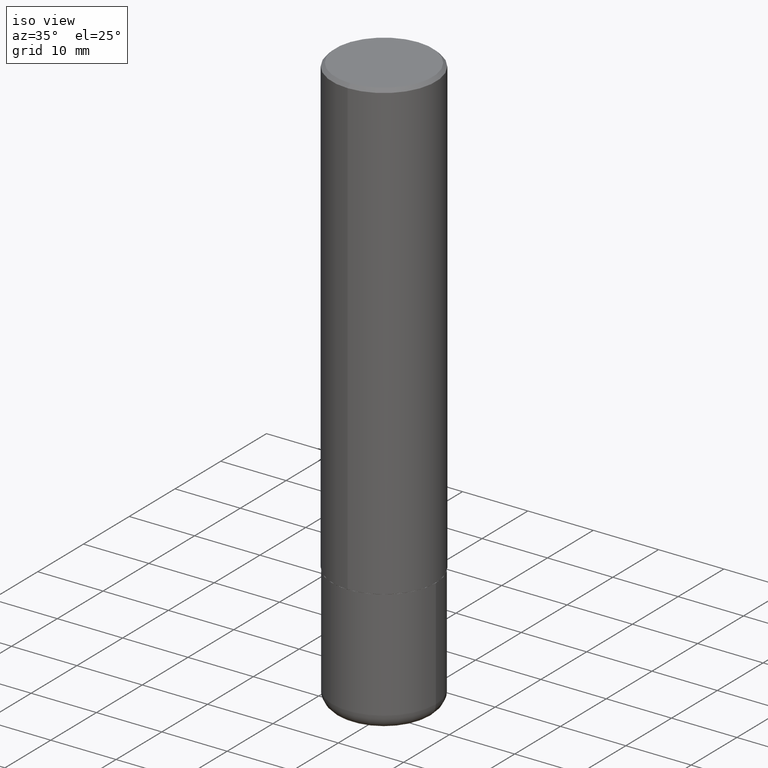
[diagram: clean part render]
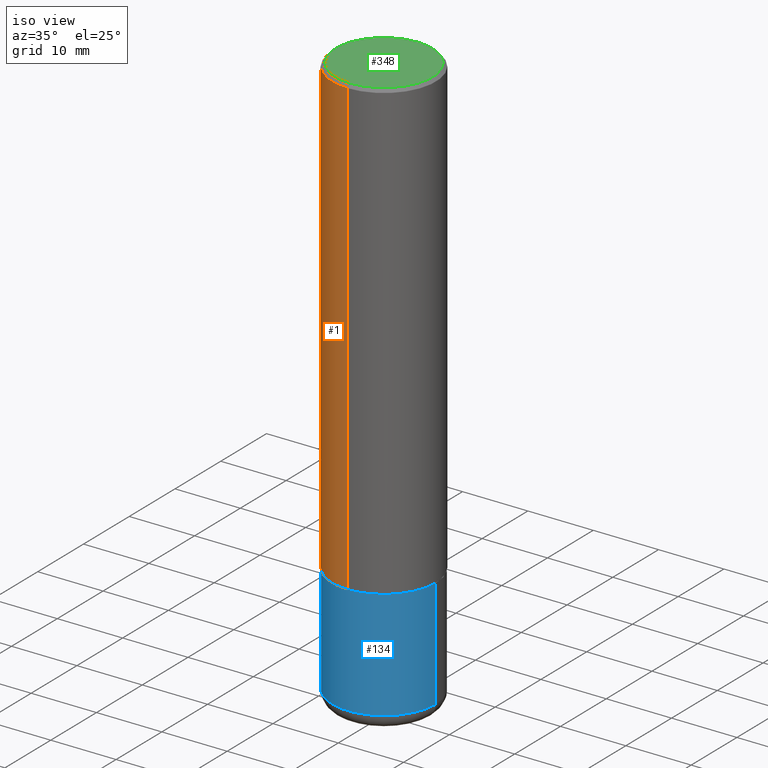
[diagram: same view with three faces highlighted in distinct colors, each labeled with its STEP entity id]
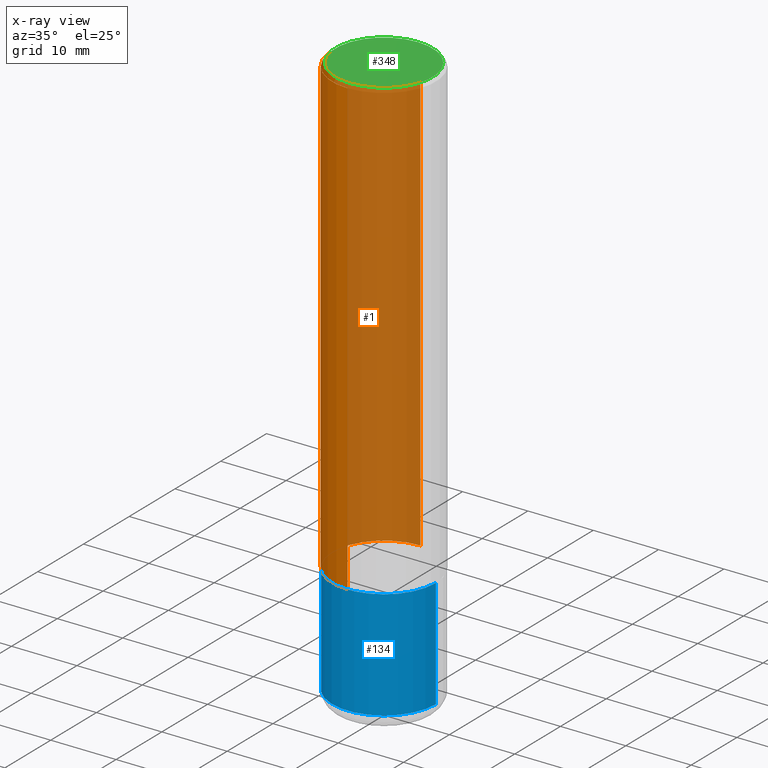
[diagram: x-ray of the same camera — body ghosted, the three highlighted faces saturated]
A machine part, iso view with three faces highlighted in distinct colors.
The next image is the same camera in x-ray (body ghosted, the three faces saturated) — at least one of them is partly hidden behind the body in this view.
Their STEP definitions:

[orange] entity #1 — the highlighted cylindrical surface (partial cylindrical patch) has radius 7.9375 mm, axis along (-0, 0, 1).
#1 = ADVANCED_FACE ( 'NONE', ( #261 ), #129, .T. ) ;
#11 = CARTESIAN_POINT ( 'NONE',  ( -2.182175836776959136E-15, -0.3125000000000001665, 1.091221009240800684E-15 ) ) ;
#22 = CIRCLE ( 'NONE', #47, 0.3125000000000002776 ) ;
#33 = LINE ( 'NONE', #11, #141 ) ;
#38 = DIRECTION ( 'NONE',  ( -6.982962677686266711E-15, -1.000000000000000000, 3.496765431890256131E-15 ) ) ;
#42 = VECTOR ( 'NONE', #274, 39.37007874015748143 ) ;
#45 = ORIENTED_EDGE ( 'NONE', *, *, #179, .F. ) ;
#47 = AXIS2_PLACEMENT_3D ( 'NONE', #415, #62, #122 ) ;
#49 = EDGE_LOOP ( 'NONE', ( #45, #280, #243, #180 ) ) ;
#52 = VERTEX_POINT ( 'NONE', #295 ) ;
#56 = DIRECTION ( 'NONE',  ( -2.445171408279705303E-29, 3.491907229570560770E-15, 1.000000000000000000 ) ) ;
#62 = DIRECTION ( 'NONE',  ( -2.445171408279705303E-29, 3.491907229570560770E-15, 1.000000000000000000 ) ) ;
#72 = EDGE_CURVE ( 'NONE', #277, #205, #22, .T. ) ;
#106 = CIRCLE ( 'NONE', #380, 0.3125000000000000555 ) ;
#122 = DIRECTION ( 'NONE',  ( -6.982962677686265922E-15, -1.000000000000000000, 3.496765431890253764E-15 ) ) ;
#129 = CYLINDRICAL_SURFACE ( 'NONE', #386, 0.3125000000000001665 ) ;
#133 = CARTESIAN_POINT ( 'NONE',  ( 2.220446049250348185E-15, 0.3124999999999906741, -2.749000000000000998 ) ) ;
#136 = LINE ( 'NONE', #367, #42 ) ;
#141 = VECTOR ( 'NONE', #270, 39.37007874015748143 ) ;
#161 = CARTESIAN_POINT ( 'NONE',  ( 0.000000000000000000, 0.000000000000000000, 0.000000000000000000 ) ) ;
#179 = EDGE_CURVE ( 'NONE', #277, #52, #136, .T. ) ;
#180 = ORIENTED_EDGE ( 'NONE', *, *, #245, .F. ) ;
#199 = CARTESIAN_POINT ( 'NONE',  ( -2.143905624303603219E-15, -0.3125000000000001665, -0.01999999999999900469 ) ) ;
#205 = VERTEX_POINT ( 'NONE', #303 ) ;
#210 = VERTEX_POINT ( 'NONE', #199 ) ;
#223 = EDGE_CURVE ( 'NONE', #205, #210, #33, .T. ) ;
#243 = ORIENTED_EDGE ( 'NONE', *, *, #223, .T. ) ;
#245 = EDGE_CURVE ( 'NONE', #52, #210, #106, .T. ) ;
#261 = FACE_OUTER_BOUND ( 'NONE', #49, .T. ) ;
#265 = DIRECTION ( 'NONE',  ( -2.445171408279705303E-29, 3.491907229570560770E-15, 1.000000000000000000 ) ) ;
#270 = DIRECTION ( 'NONE',  ( -2.445171408279705303E-29, 3.491907229570560770E-15, 1.000000000000000000 ) ) ;
#274 = DIRECTION ( 'NONE',  ( -2.445171408279705303E-29, 3.491907229570560770E-15, 1.000000000000000000 ) ) ;
#277 = VERTEX_POINT ( 'NONE', #133 ) ;
#280 = ORIENTED_EDGE ( 'NONE', *, *, #72, .T. ) ;
#295 = CARTESIAN_POINT ( 'NONE',  ( 2.182175836776959136E-15, 0.3125000000000000000, -0.02000000000000119044 ) ) ;
#303 = CARTESIAN_POINT ( 'NONE',  ( -2.182175836776892872E-15, -0.3125000000000099365, -2.748999999999999222 ) ) ;
#327 = CARTESIAN_POINT ( 'NONE',  ( 4.890342816559434953E-31, -6.983814459141154574E-17, -0.02000000000000009756 ) ) ;
#367 = CARTESIAN_POINT ( 'NONE',  ( 2.220446049250313475E-15, 0.3125000000000001665, -1.091221009240800684E-15 ) ) ;
#380 = AXIS2_PLACEMENT_3D ( 'NONE', #327, #265, #38 ) ;
#386 = AXIS2_PLACEMENT_3D ( 'NONE', #161, #56, #388 ) ;
#388 = DIRECTION ( 'NONE',  ( -6.982962677686265133E-15, -1.000000000000000000, 3.491907229570560376E-15 ) ) ;
#415 = CARTESIAN_POINT ( 'NONE',  ( 6.721776201360911132E-29, -9.599252974089470899E-15, -2.749000000000000110 ) ) ;

[blue] entity #134 — the highlighted cylindrical surface (partial cylindrical patch) has radius 7.9375 mm, axis along (-0, 0, 1).
#4 = VERTEX_POINT ( 'NONE', #186 ) ;
#6 = DIRECTION ( 'NONE',  ( -2.445468806185136877E-29, 3.491481338843145188E-15, 1.000000000000000000 ) ) ;
#24 = VERTEX_POINT ( 'NONE', #25 ) ;
#25 = CARTESIAN_POINT ( 'NONE',  ( 0.3125000000000000000, -1.178374951859560978E-14, -2.750000000000000000 ) ) ;
#43 = ORIENTED_EDGE ( 'NONE', *, *, #292, .T. ) ;
#87 = DIRECTION ( 'NONE',  ( -2.445468806185136597E-29, 3.491481338843145583E-15, 1.000000000000000000 ) ) ;
#88 = CIRCLE ( 'NONE', #196, 0.3125000000000000000 ) ;
#96 = VECTOR ( 'NONE', #6, 39.37007874015748143 ) ;
#109 = ORIENTED_EDGE ( 'NONE', *, *, #263, .F. ) ;
#113 = EDGE_LOOP ( 'NONE', ( #109, #43, #148, #182 ) ) ;
#131 = CARTESIAN_POINT ( 'NONE',  ( 0.3125000000000000000, -2.182175836776958347E-15, 1.523805242436230075E-29 ) ) ;
#134 = ADVANCED_FACE ( 'NONE', ( #390 ), #347, .T. ) ;
#148 = ORIENTED_EDGE ( 'NONE', *, *, #307, .T. ) ;
#167 = CARTESIAN_POINT ( 'NONE',  ( 8.339048629091315302E-29, -1.190595136545512608E-14, -3.410000000000000142 ) ) ;
#170 = DIRECTION ( 'NONE',  ( 1.000000000000000000, -6.982962677686269077E-15, 0.000000000000000000 ) ) ;
#182 = ORIENTED_EDGE ( 'NONE', *, *, #350, .F. ) ;
#185 = CARTESIAN_POINT ( 'NONE',  ( 6.725039217009124520E-29, -9.601573681818649859E-15, -2.750000000000000000 ) ) ;
#186 = CARTESIAN_POINT ( 'NONE',  ( 0.3124999999999998890, -1.408812720223208442E-14, -3.410000000000000142 ) ) ;
#187 = CARTESIAN_POINT ( 'NONE',  ( -0.3124999999999998890, -9.685505316204812997E-15, -3.410000000000000142 ) ) ;
#196 = AXIS2_PLACEMENT_3D ( 'NONE', #185, #264, #318 ) ;
#217 = CARTESIAN_POINT ( 'NONE',  ( 0.000000000000000000, 0.000000000000000000, 0.000000000000000000 ) ) ;
#231 = CARTESIAN_POINT ( 'NONE',  ( -0.3125000000000000000, -8.533316474386574888E-15, -2.750000000000000000 ) ) ;
#253 = DIRECTION ( 'NONE',  ( 1.000000000000000000, -6.982962677686266711E-15, 4.876176775795936353E-29 ) ) ;
#263 = EDGE_CURVE ( 'NONE', #310, #306, #297, .T. ) ;
#264 = DIRECTION ( 'NONE',  ( -2.445468806185136597E-29, 3.491481338843145583E-15, 1.000000000000000000 ) ) ;
#281 = VECTOR ( 'NONE', #395, 39.37007874015748143 ) ;
#292 = EDGE_CURVE ( 'NONE', #310, #4, #394, .T. ) ;
#297 = LINE ( 'NONE', #304, #96 ) ;
#302 = DIRECTION ( 'NONE',  ( -2.445468806185136597E-29, 3.491481338843145583E-15, 1.000000000000000000 ) ) ;
#304 = CARTESIAN_POINT ( 'NONE',  ( -0.3125000000000000000, 2.220446049250313081E-15, -1.537167215704658232E-29 ) ) ;
#306 = VERTEX_POINT ( 'NONE', #231 ) ;
#307 = EDGE_CURVE ( 'NONE', #4, #24, #389, .T. ) ;
#310 = VERTEX_POINT ( 'NONE', #187 ) ;
#318 = DIRECTION ( 'NONE',  ( 1.000000000000000000, -6.982962677686269077E-15, 0.000000000000000000 ) ) ;
#347 = CYLINDRICAL_SURFACE ( 'NONE', #354, 0.3125000000000000000 ) ;
#350 = EDGE_CURVE ( 'NONE', #306, #24, #88, .T. ) ;
#354 = AXIS2_PLACEMENT_3D ( 'NONE', #217, #87, #253 ) ;
#389 = LINE ( 'NONE', #131, #281 ) ;
#390 = FACE_OUTER_BOUND ( 'NONE', #113, .T. ) ;
#394 = CIRCLE ( 'NONE', #404, 0.3125000000000000000 ) ;
#395 = DIRECTION ( 'NONE',  ( -2.445468806185136877E-29, 3.491481338843145188E-15, 1.000000000000000000 ) ) ;
#404 = AXIS2_PLACEMENT_3D ( 'NONE', #167, #302, #170 ) ;

[green] entity #348 — the highlighted planar face has unit normal (0, -0, -1).
#7 = AXIS2_PLACEMENT_3D ( 'NONE', #414, #28, #351 ) ;
#9 = DIRECTION ( 'NONE',  ( -2.445171408279705303E-29, 3.491907229570560770E-15, 1.000000000000000000 ) ) ;
#12 = CARTESIAN_POINT ( 'NONE',  ( 2.112346210000096627E-15, 0.2925000000000002043, -1.145045153824532785E-15 ) ) ;
#28 = DIRECTION ( 'NONE',  ( 2.445171408279705022E-29, -3.491907229570560770E-15, -1.000000000000000000 ) ) ;
#35 = CARTESIAN_POINT ( 'NONE',  ( -2.075300644325888676E-15, -0.2925000000000002043, 8.977205754742468235E-16 ) ) ;
#46 = EDGE_CURVE ( 'NONE', #248, #250, #254, .T. ) ;
#111 = EDGE_LOOP ( 'NONE', ( #279, #336 ) ) ;
#121 = PLANE ( 'NONE',  #7 ) ;
#138 = CARTESIAN_POINT ( 'NONE',  ( 3.023754937734766130E-45, -4.318172415959271886E-31, -1.236622891751430301E-16 ) ) ;
#156 = CARTESIAN_POINT ( 'NONE',  ( 3.023754937734766130E-45, -4.318172415959271886E-31, -1.236622891751430301E-16 ) ) ;
#188 = DIRECTION ( 'NONE',  ( -6.982962677686266711E-15, -1.000000000000000000, 3.491907229570560770E-15 ) ) ;
#201 = AXIS2_PLACEMENT_3D ( 'NONE', #156, #225, #188 ) ;
#225 = DIRECTION ( 'NONE',  ( -2.445171408279705303E-29, 3.491907229570560770E-15, 1.000000000000000000 ) ) ;
#226 = EDGE_CURVE ( 'NONE', #250, #248, #369, .T. ) ;
#248 = VERTEX_POINT ( 'NONE', #12 ) ;
#250 = VERTEX_POINT ( 'NONE', #35 ) ;
#254 = CIRCLE ( 'NONE', #201, 0.2925000000000002043 ) ;
#273 = AXIS2_PLACEMENT_3D ( 'NONE', #138, #9, #333 ) ;
#279 = ORIENTED_EDGE ( 'NONE', *, *, #46, .T. ) ;
#286 = FACE_OUTER_BOUND ( 'NONE', #111, .T. ) ;
#333 = DIRECTION ( 'NONE',  ( -6.982962677686266711E-15, -1.000000000000000000, 3.491907229570560770E-15 ) ) ;
#336 = ORIENTED_EDGE ( 'NONE', *, *, #226, .T. ) ;
#348 = ADVANCED_FACE ( 'NONE', ( #286 ), #121, .F. ) ;
#351 = DIRECTION ( 'NONE',  ( 6.982962677686265922E-15, 1.000000000000000000, -3.491907229570560770E-15 ) ) ;
#369 = CIRCLE ( 'NONE', #273, 0.2925000000000002043 ) ;
#414 = CARTESIAN_POINT ( 'NONE',  ( 2.042516583223234512E-15, 0.2925000000000002043, -1.083214009236961245E-15 ) ) ;